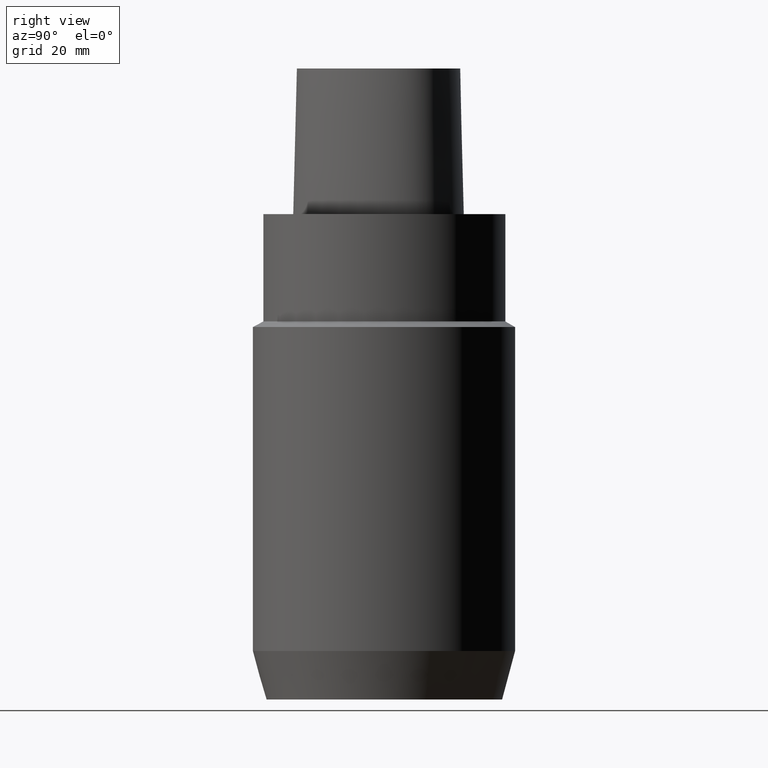
[diagram: clean part render]
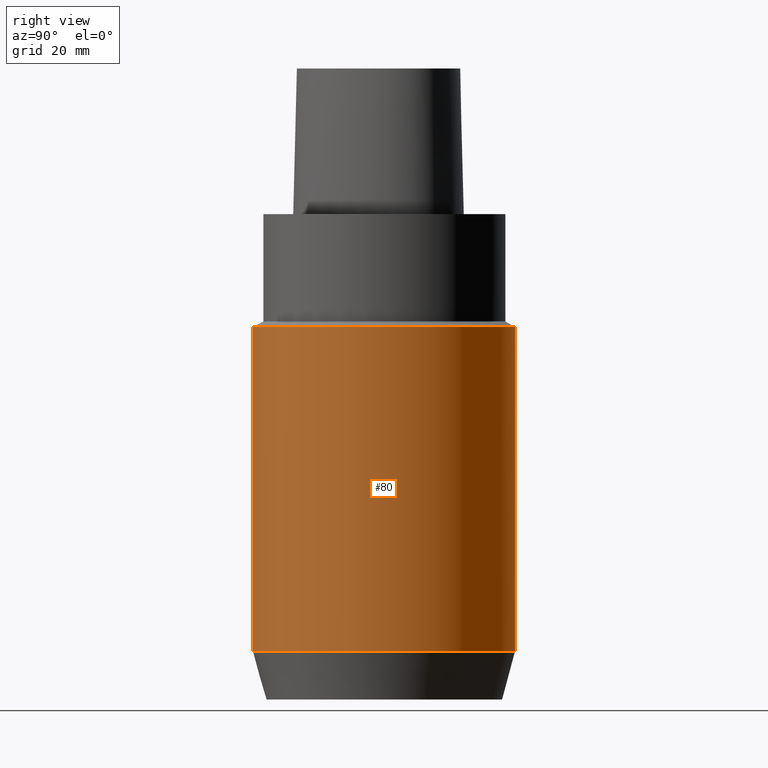
[diagram: same view with one face highlighted and labeled with its STEP entity id]
A machine part, right view. The second image highlights one B-rep face of the part: STEP entity #80.
In plain terms, the highlighted cylindrical surface (bore or boss wall) has radius 27 mm, axis along (0, 0, -1).
Its self-contained STEP definition (entity closure, byte-faithful):
#80=ADVANCED_FACE('',(#96,#97),#98,.T.);
#96=FACE_BOUND('',#500,.T.);
#97=FACE_BOUND('',#501,.T.);
#98=CYLINDRICAL_SURFACE('',#502,27.0);
#500=EDGE_LOOP('',(#531));
#501=EDGE_LOOP('',(#532));
#502=AXIS2_PLACEMENT_3D('',#533,#534,#535);
#531=ORIENTED_EDGE('',*,*,#552,.F.);
#532=ORIENTED_EDGE('',*,*,#551,.T.);
#533=CARTESIAN_POINT('',(3.46789879580631E-015,6.93579759161262E-015,-56.6350852869708));
#534=DIRECTION('',(6.12323399573677E-017,1.22464679914735E-016,-1.0));
#535=DIRECTION('',(-1.23259516440783E-032,1.0,1.22464679914735E-016));
#551=EDGE_CURVE('',#563,#563,#564,.T.);
#552=EDGE_CURVE('',#565,#565,#566,.T.);
#563=VERTEX_POINT('',#724);
#564=CIRCLE('',#725,27.0);
#565=VERTEX_POINT('',#726);
#566=CIRCLE('',#727,27.0);
#724=CARTESIAN_POINT('',(5.51091059482701E-015,27.0,-89.9999999781801));
#725=AXIS2_PLACEMENT_3D('',#736,#737,#738);
#726=CARTESIAN_POINT('',(1.42488699678561E-015,27.0,-23.2701705957616));
#727=AXIS2_PLACEMENT_3D('',#739,#740,#741);
#736=CARTESIAN_POINT('',(5.51091059482701E-015,1.1021821189654E-014,-89.9999999781801));
#737=DIRECTION('',(-6.12323399573677E-017,-1.22464679914735E-016,1.0));
#738=DIRECTION('',(-1.23259516440783E-032,1.0,1.22464679914735E-016));
#739=CARTESIAN_POINT('',(1.42488699678561E-015,2.84977399357123E-015,-23.2701705957616));
#740=DIRECTION('',(-6.12323399573677E-017,-1.22464679914735E-016,1.0));
#741=DIRECTION('',(-1.23259516440783E-032,1.0,1.22464679914735E-016));